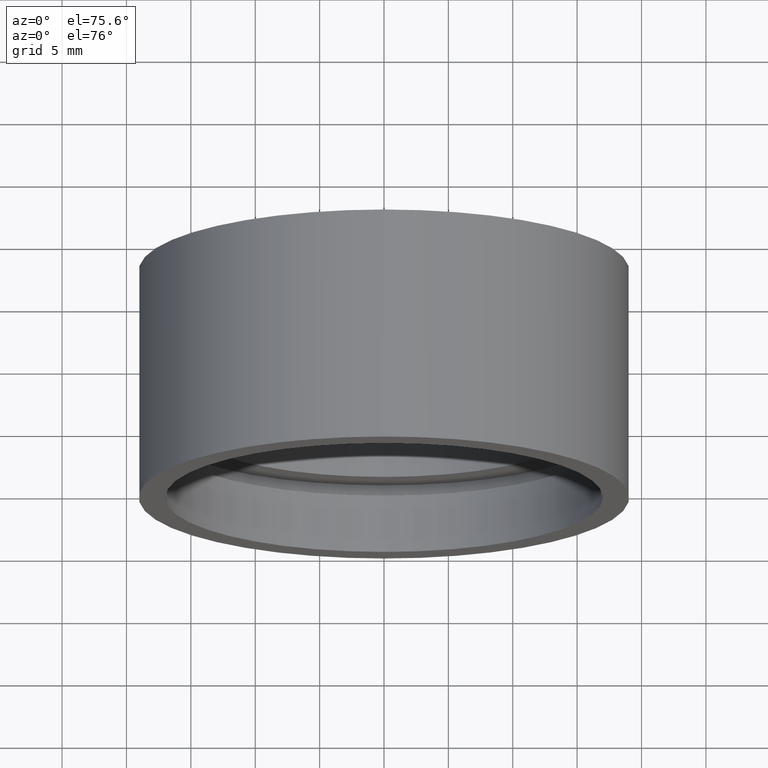
[diagram: clean part render]
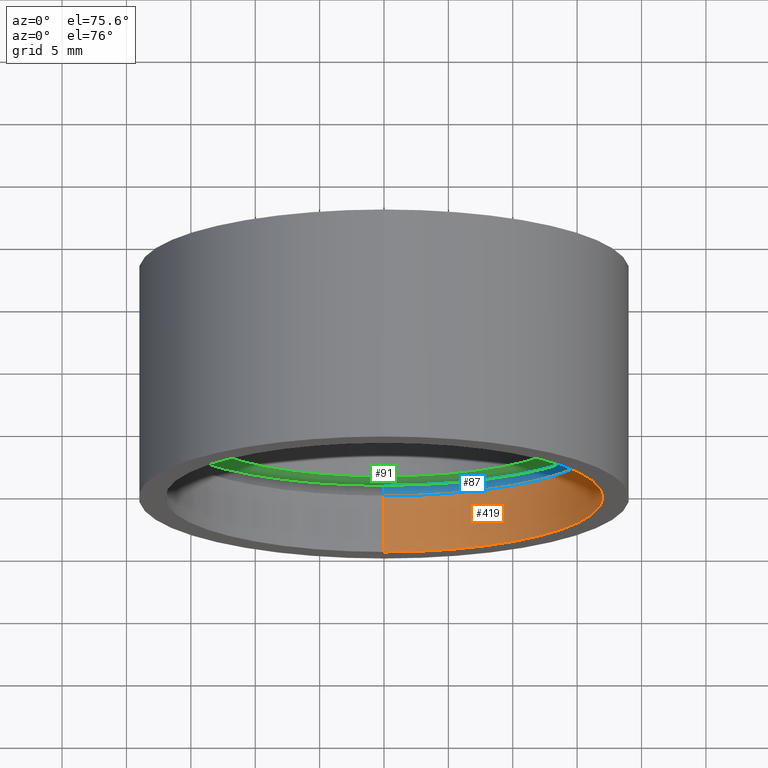
[diagram: same view with three faces highlighted in distinct colors, each labeled with its STEP entity id]
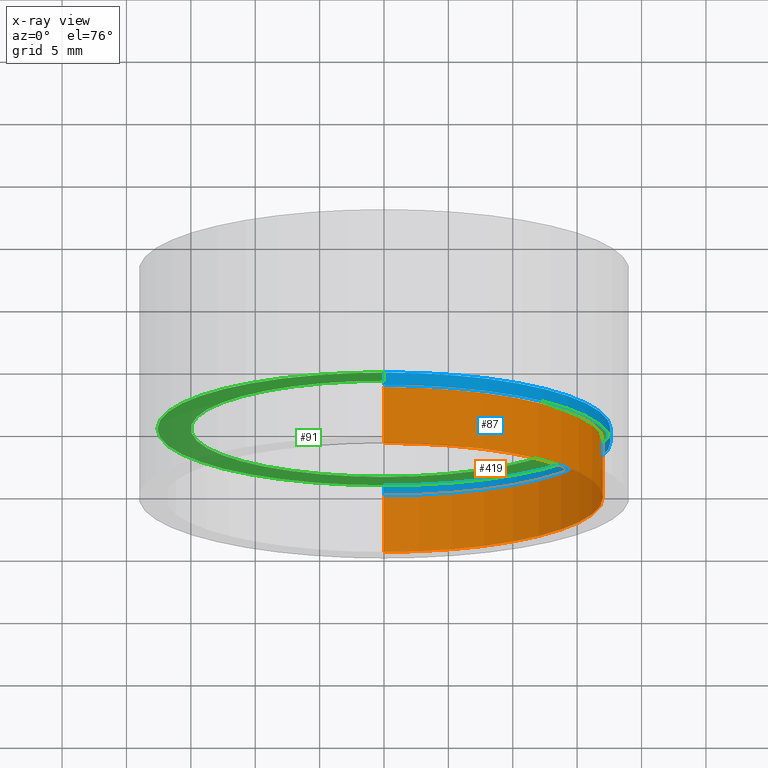
[diagram: x-ray of the same camera — body ghosted, the three highlighted faces saturated]
A machine part, auxiliary view with three faces highlighted in distinct colors.
The next image is the same camera in x-ray (body ghosted, the three faces saturated) — at least one of them is partly hidden behind the body in this view.
Their STEP definitions:

[orange] entity #419 — the highlighted cylindrical surface (partial cylindrical patch) has radius 17 mm, axis along (-0, 1, -0).
#4 = VECTOR ( 'NONE', #358, 1000.000000000000000 ) ;
#32 = VERTEX_POINT ( 'NONE', #595 ) ;
#61 = ORIENTED_EDGE ( 'NONE', *, *, #258, .T. ) ;
#88 = CARTESIAN_POINT ( 'NONE',  ( 0.0000000000000000000, 161.3761669434274500, 0.0000000000000000000 ) ) ;
#100 = FACE_OUTER_BOUND ( 'NONE', #487, .T. ) ;
#103 = CARTESIAN_POINT ( 'NONE',  ( 0.0000000000000000000, 4.499999999999976000, 17.00000000000002100 ) ) ;
#114 = AXIS2_PLACEMENT_3D ( 'NONE', #88, #197, #578 ) ;
#127 = EDGE_CURVE ( 'NONE', #32, #541, #261, .T. ) ;
#147 = DIRECTION ( 'NONE',  ( 0.0000000000000000000, 0.0000000000000000000, 1.000000000000000000 ) ) ;
#148 = VERTEX_POINT ( 'NONE', #175 ) ;
#175 = CARTESIAN_POINT ( 'NONE',  ( 2.081899558550503000E-015, 4.499999999999976000, -17.00000000000002100 ) ) ;
#186 = CARTESIAN_POINT ( 'NONE',  ( 2.081899558550503000E-015, 161.3761669434274500, -17.00000000000002100 ) ) ;
#197 = DIRECTION ( 'NONE',  ( -0.0000000000000000000, 1.000000000000000000, -0.0000000000000000000 ) ) ;
#200 = EDGE_CURVE ( 'NONE', #506, #148, #253, .T. ) ;
#229 = CARTESIAN_POINT ( 'NONE',  ( 0.0000000000000000000, 4.499999999999976000, 0.0000000000000000000 ) ) ;
#235 = EDGE_CURVE ( 'NONE', #32, #506, #457, .T. ) ;
#246 = CARTESIAN_POINT ( 'NONE',  ( 2.081899558550503000E-015, -2.775557561562891400E-014, -17.00000000000002100 ) ) ;
#253 = LINE ( 'NONE', #186, #524 ) ;
#258 = EDGE_CURVE ( 'NONE', #541, #148, #587, .T. ) ;
#261 = LINE ( 'NONE', #399, #4 ) ;
#276 = CARTESIAN_POINT ( 'NONE',  ( 0.0000000000000000000, -2.775557561562891400E-014, 0.0000000000000000000 ) ) ;
#291 = DIRECTION ( 'NONE',  ( -0.0000000000000000000, 1.000000000000000000, -0.0000000000000000000 ) ) ;
#325 = DIRECTION ( 'NONE',  ( -0.0000000000000000000, 1.000000000000000000, -0.0000000000000000000 ) ) ;
#358 = DIRECTION ( 'NONE',  ( -0.0000000000000000000, 1.000000000000000000, -0.0000000000000000000 ) ) ;
#393 = ORIENTED_EDGE ( 'NONE', *, *, #127, .T. ) ;
#398 = ORIENTED_EDGE ( 'NONE', *, *, #235, .F. ) ;
#399 = CARTESIAN_POINT ( 'NONE',  ( 0.0000000000000000000, 161.3761669434274500, 17.00000000000002100 ) ) ;
#407 = DIRECTION ( 'NONE',  ( -0.0000000000000000000, 1.000000000000000000, -0.0000000000000000000 ) ) ;
#419 = ADVANCED_FACE ( 'NONE', ( #100 ), #533, .F. ) ;
#457 = CIRCLE ( 'NONE', #537, 17.00000000000002100 ) ;
#487 = EDGE_LOOP ( 'NONE', ( #539, #398, #393, #61 ) ) ;
#506 = VERTEX_POINT ( 'NONE', #246 ) ;
#524 = VECTOR ( 'NONE', #407, 1000.000000000000000 ) ;
#533 = CYLINDRICAL_SURFACE ( 'NONE', #114, 17.00000000000002100 ) ;
#537 = AXIS2_PLACEMENT_3D ( 'NONE', #276, #325, #609 ) ;
#539 = ORIENTED_EDGE ( 'NONE', *, *, #200, .F. ) ;
#541 = VERTEX_POINT ( 'NONE', #103 ) ;
#578 = DIRECTION ( 'NONE',  ( 0.0000000000000000000, 0.0000000000000000000, 1.000000000000000000 ) ) ;
#584 = AXIS2_PLACEMENT_3D ( 'NONE', #229, #291, #147 ) ;
#587 = CIRCLE ( 'NONE', #584, 17.00000000000002100 ) ;
#595 = CARTESIAN_POINT ( 'NONE',  ( 0.0000000000000000000, -2.775557561562891400E-014, 17.00000000000002100 ) ) ;
#609 = DIRECTION ( 'NONE',  ( 0.0000000000000000000, 0.0000000000000000000, 1.000000000000000000 ) ) ;

[blue] entity #87 — the highlighted cylindrical surface (partial cylindrical patch) has radius 17.6 mm, axis along (-0, 1, -0).
#1 = CARTESIAN_POINT ( 'NONE',  ( 0.0000000000000000000, 4.499999999999976000, 17.60000000000002300 ) ) ;
#28 = DIRECTION ( 'NONE',  ( 0.0000000000000000000, 0.0000000000000000000, 1.000000000000000000 ) ) ;
#49 = ORIENTED_EDGE ( 'NONE', *, *, #169, .T. ) ;
#78 = DIRECTION ( 'NONE',  ( 0.0000000000000000000, 0.0000000000000000000, 1.000000000000000000 ) ) ;
#81 = DIRECTION ( 'NONE',  ( -0.0000000000000000000, 1.000000000000000000, -0.0000000000000000000 ) ) ;
#87 = ADVANCED_FACE ( 'NONE', ( #97 ), #387, .F. ) ;
#89 = VECTOR ( 'NONE', #428, 1000.000000000000000 ) ;
#90 = CARTESIAN_POINT ( 'NONE',  ( 2.155378366499344400E-015, 161.3761669434274500, -17.60000000000002300 ) ) ;
#94 = CIRCLE ( 'NONE', #534, 17.60000000000002300 ) ;
#97 = FACE_OUTER_BOUND ( 'NONE', #371, .T. ) ;
#105 = CIRCLE ( 'NONE', #332, 17.60000000000002300 ) ;
#110 = VECTOR ( 'NONE', #521, 1000.000000000000000 ) ;
#120 = LINE ( 'NONE', #532, #89 ) ;
#142 = CARTESIAN_POINT ( 'NONE',  ( 0.0000000000000000000, 5.499999999999976900, 17.60000000000002300 ) ) ;
#156 = VERTEX_POINT ( 'NONE', #259 ) ;
#168 = DIRECTION ( 'NONE',  ( -0.0000000000000000000, 1.000000000000000000, -0.0000000000000000000 ) ) ;
#169 = EDGE_CURVE ( 'NONE', #273, #170, #105, .T. ) ;
#170 = VERTEX_POINT ( 'NONE', #461 ) ;
#196 = AXIS2_PLACEMENT_3D ( 'NONE', #403, #168, #212 ) ;
#205 = EDGE_CURVE ( 'NONE', #515, #156, #94, .T. ) ;
#212 = DIRECTION ( 'NONE',  ( 0.0000000000000000000, 0.0000000000000000000, 1.000000000000000000 ) ) ;
#224 = ORIENTED_EDGE ( 'NONE', *, *, #543, .T. ) ;
#228 = CARTESIAN_POINT ( 'NONE',  ( 0.0000000000000000000, 4.499999999999976000, 0.0000000000000000000 ) ) ;
#237 = LINE ( 'NONE', #90, #110 ) ;
#259 = CARTESIAN_POINT ( 'NONE',  ( 2.155378366499344400E-015, 4.499999999999976000, -17.60000000000002300 ) ) ;
#272 = ORIENTED_EDGE ( 'NONE', *, *, #205, .F. ) ;
#273 = VERTEX_POINT ( 'NONE', #142 ) ;
#322 = EDGE_CURVE ( 'NONE', #156, #170, #237, .T. ) ;
#332 = AXIS2_PLACEMENT_3D ( 'NONE', #605, #81, #78 ) ;
#344 = ORIENTED_EDGE ( 'NONE', *, *, #322, .F. ) ;
#367 = DIRECTION ( 'NONE',  ( -0.0000000000000000000, 1.000000000000000000, -0.0000000000000000000 ) ) ;
#371 = EDGE_LOOP ( 'NONE', ( #344, #272, #224, #49 ) ) ;
#387 = CYLINDRICAL_SURFACE ( 'NONE', #196, 17.60000000000002300 ) ;
#403 = CARTESIAN_POINT ( 'NONE',  ( 0.0000000000000000000, 161.3761669434274500, 0.0000000000000000000 ) ) ;
#428 = DIRECTION ( 'NONE',  ( -0.0000000000000000000, 1.000000000000000000, -0.0000000000000000000 ) ) ;
#461 = CARTESIAN_POINT ( 'NONE',  ( 2.155378366499344400E-015, 5.499999999999976900, -17.60000000000002300 ) ) ;
#515 = VERTEX_POINT ( 'NONE', #1 ) ;
#521 = DIRECTION ( 'NONE',  ( -0.0000000000000000000, 1.000000000000000000, -0.0000000000000000000 ) ) ;
#532 = CARTESIAN_POINT ( 'NONE',  ( 0.0000000000000000000, 161.3761669434274500, 17.60000000000002300 ) ) ;
#534 = AXIS2_PLACEMENT_3D ( 'NONE', #228, #367, #28 ) ;
#543 = EDGE_CURVE ( 'NONE', #515, #273, #120, .T. ) ;
#605 = CARTESIAN_POINT ( 'NONE',  ( 0.0000000000000000000, 5.499999999999976900, 0.0000000000000000000 ) ) ;

[green] entity #91 — the highlighted planar face has unit normal (-0, 1, 0).
#6 = AXIS2_PLACEMENT_3D ( 'NONE', #35, #410, #84 ) ;
#35 = CARTESIAN_POINT ( 'NONE',  ( 0.0000000000000000000, 5.499999999999976900, 0.0000000000000000000 ) ) ;
#57 = EDGE_CURVE ( 'NONE', #206, #404, #240, .T. ) ;
#65 = DIRECTION ( 'NONE',  ( -0.0000000000000000000, 1.000000000000000000, 0.0000000000000000000 ) ) ;
#78 = DIRECTION ( 'NONE',  ( 0.0000000000000000000, 0.0000000000000000000, 1.000000000000000000 ) ) ;
#81 = DIRECTION ( 'NONE',  ( -0.0000000000000000000, 1.000000000000000000, -0.0000000000000000000 ) ) ;
#84 = DIRECTION ( 'NONE',  ( 0.0000000000000000000, 0.0000000000000000000, 1.000000000000000000 ) ) ;
#91 = ADVANCED_FACE ( 'NONE', ( #233, #139 ), #546, .F. ) ;
#96 = ORIENTED_EDGE ( 'NONE', *, *, #169, .F. ) ;
#105 = CIRCLE ( 'NONE', #332, 17.60000000000002300 ) ;
#139 = FACE_BOUND ( 'NONE', #183, .T. ) ;
#142 = CARTESIAN_POINT ( 'NONE',  ( 0.0000000000000000000, 5.499999999999976900, 17.60000000000002300 ) ) ;
#149 = CIRCLE ( 'NONE', #6, 15.00000000000001800 ) ;
#169 = EDGE_CURVE ( 'NONE', #273, #170, #105, .T. ) ;
#170 = VERTEX_POINT ( 'NONE', #461 ) ;
#174 = CARTESIAN_POINT ( 'NONE',  ( 0.0000000000000000000, 5.499999999999976900, 0.0000000000000000000 ) ) ;
#183 = EDGE_LOOP ( 'NONE', ( #278, #260 ) ) ;
#189 = AXIS2_PLACEMENT_3D ( 'NONE', #538, #65, #257 ) ;
#206 = VERTEX_POINT ( 'NONE', #512 ) ;
#211 = DIRECTION ( 'NONE',  ( -0.0000000000000000000, 1.000000000000000000, -0.0000000000000000000 ) ) ;
#217 = CARTESIAN_POINT ( 'NONE',  ( 0.0000000000000000000, 5.499999999999976900, 0.0000000000000000000 ) ) ;
#222 = EDGE_CURVE ( 'NONE', #404, #206, #149, .T. ) ;
#233 = FACE_OUTER_BOUND ( 'NONE', #412, .T. ) ;
#240 = CIRCLE ( 'NONE', #522, 15.00000000000001800 ) ;
#257 = DIRECTION ( 'NONE',  ( 0.0000000000000000000, 0.0000000000000000000, 1.000000000000000000 ) ) ;
#260 = ORIENTED_EDGE ( 'NONE', *, *, #222, .T. ) ;
#273 = VERTEX_POINT ( 'NONE', #142 ) ;
#277 = AXIS2_PLACEMENT_3D ( 'NONE', #174, #499, #503 ) ;
#278 = ORIENTED_EDGE ( 'NONE', *, *, #57, .T. ) ;
#295 = ORIENTED_EDGE ( 'NONE', *, *, #566, .F. ) ;
#310 = CIRCLE ( 'NONE', #277, 17.60000000000002300 ) ;
#332 = AXIS2_PLACEMENT_3D ( 'NONE', #605, #81, #78 ) ;
#374 = CARTESIAN_POINT ( 'NONE',  ( 1.836970198721032000E-015, 5.499999999999976900, -15.00000000000001800 ) ) ;
#402 = DIRECTION ( 'NONE',  ( 0.0000000000000000000, 0.0000000000000000000, 1.000000000000000000 ) ) ;
#404 = VERTEX_POINT ( 'NONE', #374 ) ;
#410 = DIRECTION ( 'NONE',  ( -0.0000000000000000000, 1.000000000000000000, -0.0000000000000000000 ) ) ;
#412 = EDGE_LOOP ( 'NONE', ( #96, #295 ) ) ;
#461 = CARTESIAN_POINT ( 'NONE',  ( 2.155378366499344400E-015, 5.499999999999976900, -17.60000000000002300 ) ) ;
#499 = DIRECTION ( 'NONE',  ( -0.0000000000000000000, 1.000000000000000000, -0.0000000000000000000 ) ) ;
#503 = DIRECTION ( 'NONE',  ( 0.0000000000000000000, 0.0000000000000000000, 1.000000000000000000 ) ) ;
#512 = CARTESIAN_POINT ( 'NONE',  ( 0.0000000000000000000, 5.499999999999976900, 15.00000000000001800 ) ) ;
#522 = AXIS2_PLACEMENT_3D ( 'NONE', #217, #211, #402 ) ;
#538 = CARTESIAN_POINT ( 'NONE',  ( 15.00000000000001800, 5.499999999999984000, 0.0000000000000000000 ) ) ;
#546 = PLANE ( 'NONE',  #189 ) ;
#566 = EDGE_CURVE ( 'NONE', #170, #273, #310, .T. ) ;
#605 = CARTESIAN_POINT ( 'NONE',  ( 0.0000000000000000000, 5.499999999999976900, 0.0000000000000000000 ) ) ;